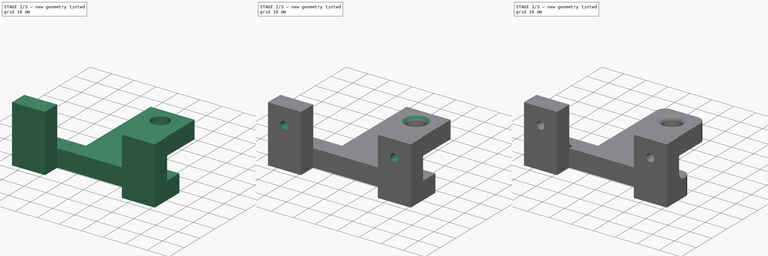
[diagram: build sequence overview — one tinted view per stage of 3, left to right]
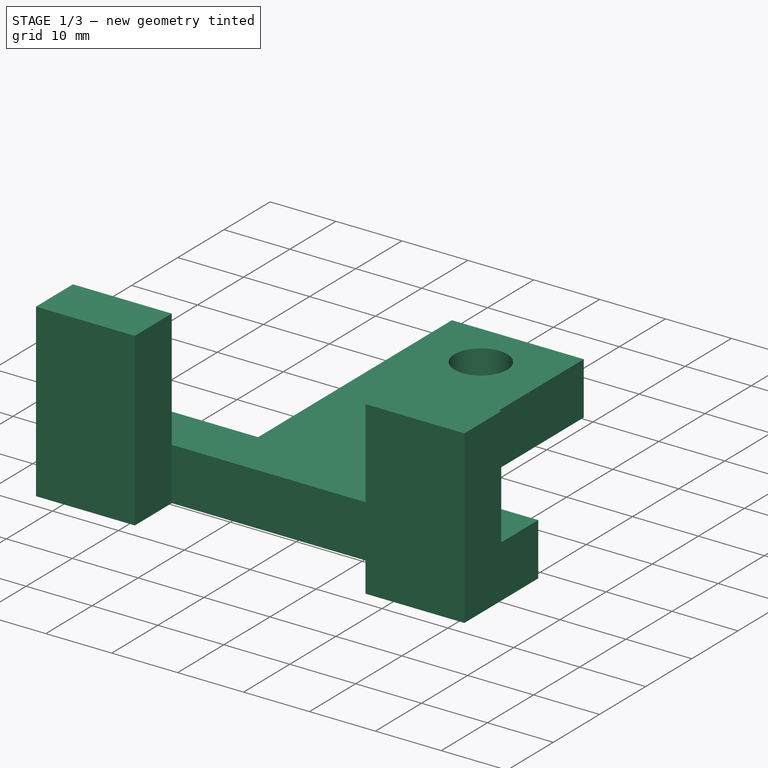
[diagram: stage 1 of 3 — iso view after this stage's code; geometry added in this stage tinted green]
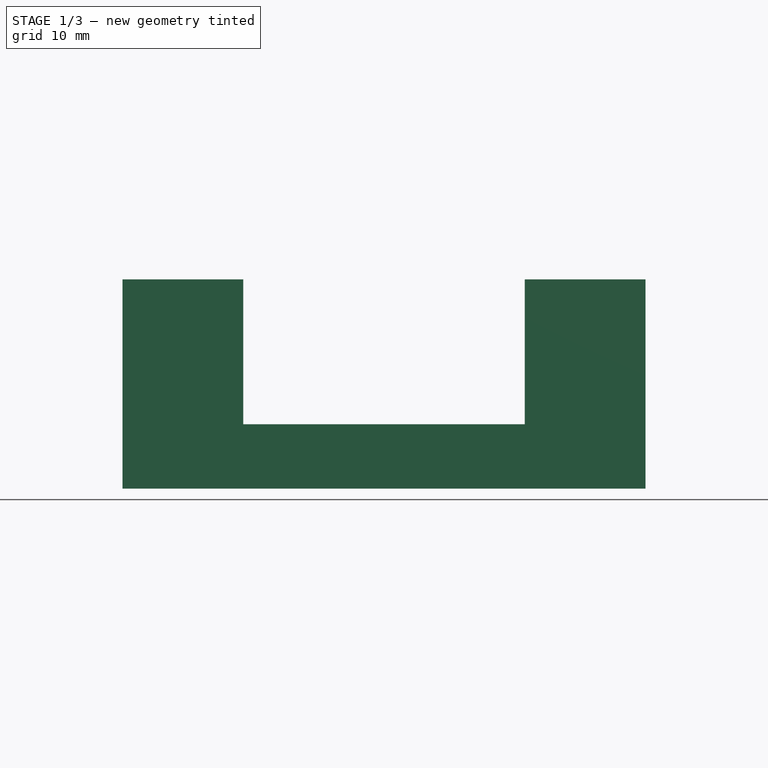
[diagram: stage 1 of 3 — front view after this stage's code; geometry added in this stage tinted green]
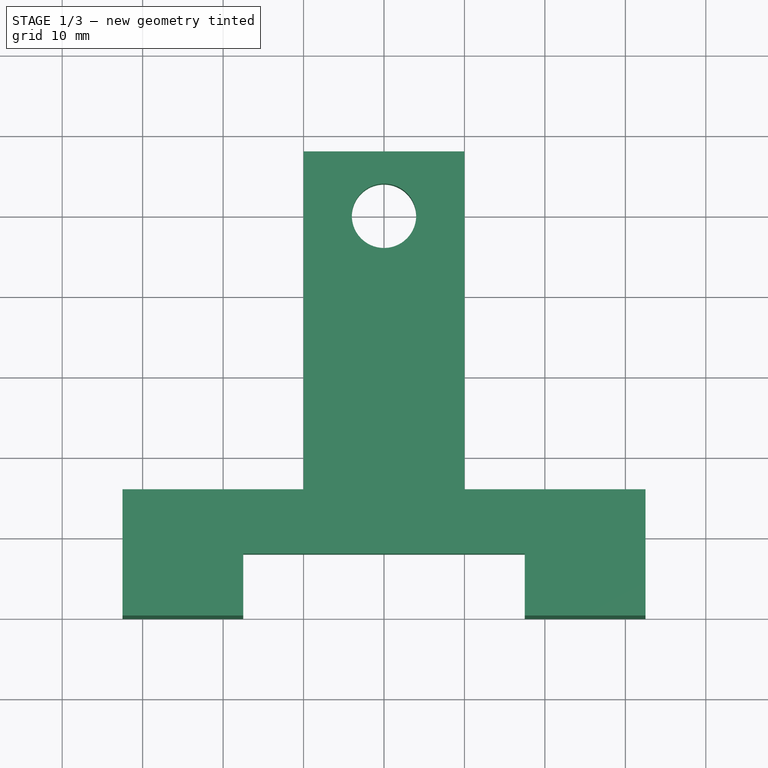
[diagram: stage 1 of 3 — top view after this stage's code; geometry added in this stage tinted green]
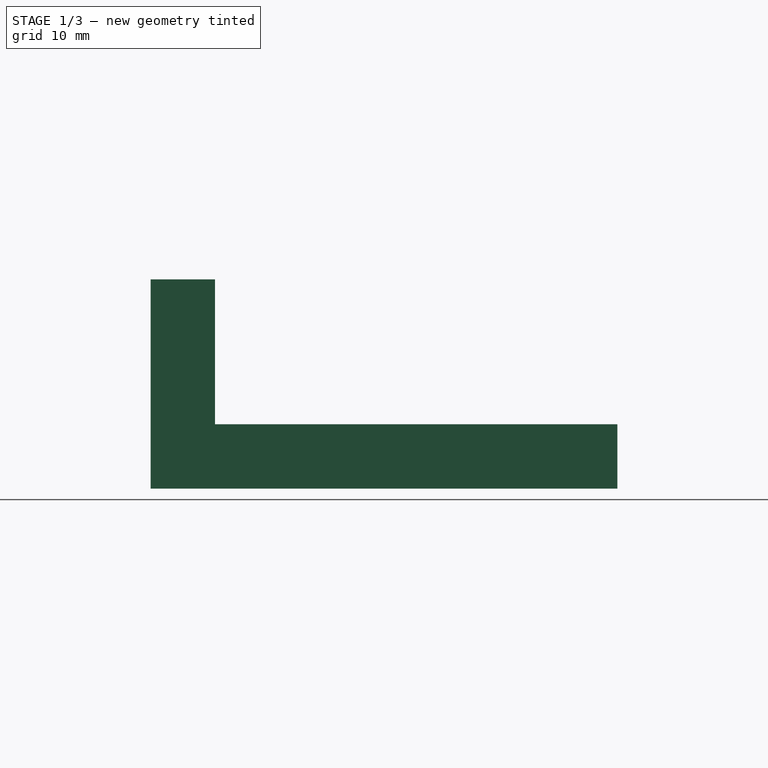
[diagram: stage 1 of 3 — right view after this stage's code; geometry added in this stage tinted green]
FCSTD DOCUMENT  (FreeCAD 1.0R39109 (Git))
Label: centre_tension_feed
License: All rights reserved
LicenseURL: http://en.wikipedia.org/wiki/All_rights_reserved
objects: PartDesign::Fillet×4, Sketcher::SketchObject×3, PartDesign::Pad×2, PartDesign::Pocket×1, PartDesign::Body×1
note: 28 computed .brp shape members not serialized (recipe doc carries the construction recipe); baked Part::Feature solids carry a one-line shape summary decoded from their .brp

FEATURE [Sketcher::SketchObject] Sketch
  ArcFitTolerance = 1e-06
  AttachmentSupport = -> [XY_Plane]
  FullyConstrained = true
  MakeInternals = false
  MapMode = 5
  sketch-geometry (13):
    g0: LineSegment StartX=-32.5 StartY=0 StartZ=0 EndX=-17.5 EndY=0 EndZ=0
    g1: LineSegment StartX=-17.5 StartY=0 StartZ=0 EndX=-17.5 EndY=8 EndZ=0
    g2: LineSegment StartX=-17.5 StartY=8 StartZ=0 EndX=17.5 EndY=8 EndZ=0
    g3: LineSegment StartX=17.5 StartY=8 StartZ=0 EndX=17.5 EndY=0 EndZ=0
    g4: LineSegment StartX=17.5 StartY=0 StartZ=0 EndX=32.5 EndY=0 EndZ=0
    g5: LineSegment StartX=32.5 StartY=0 StartZ=0 EndX=32.5 EndY=16 EndZ=0
    g6: LineSegment StartX=32.5 StartY=16 StartZ=0 EndX=10 EndY=16 EndZ=0
    g7: LineSegment StartX=10 StartY=16 StartZ=0 EndX=10 EndY=58 EndZ=0
    g8: LineSegment StartX=10 StartY=58 StartZ=0 EndX=-10 EndY=58 EndZ=0
    g9: LineSegment StartX=-10 StartY=58 StartZ=0 EndX=-10 EndY=16 EndZ=0
    g10: LineSegment StartX=-10 StartY=16 StartZ=0 EndX=-32.5 EndY=16 EndZ=0
    g11: LineSegment StartX=-32.5 StartY=16 StartZ=0 EndX=-32.5 EndY=0 EndZ=0
    g12: Circle CenterX=0 CenterY=50 CenterZ=0 NormalX=0 NormalY=0 NormalZ=1 AngleXU=0 Radius=4
  constraints (36):
    c: PointOnObject(g0,g-1)
    c: PointOnObject(g0,g-1)
    c: Coincident(g0,g1)
    c: Vertical(g1)
    c: Coincident(g1,g2)
    c: Coincident(g2,g3)
    c: PointOnObject(g3,g-1)
    c: Vertical(g3)
    c: Coincident(g3,g4)
    c: PointOnObject(g4,g-1)
    c: Coincident(g4,g5)
    c: Vertical(g5)
    c: Coincident(g5,g6)
    c: Horizontal(g6)
    c: Coincident(g6,g7)
    c: Vertical(g7)
    c: Coincident(g7,g8)
    c: Horizontal(g8)
    c: Coincident(g8,g9)
    c: Coincident(g9,g10)
    c: Coincident(g10,g11)
    c: Coincident(g11,g0)
    c: Vertical(g11)
    c: Vertical(g9)
    c: Symmetric(g2,g1,g-2)
    c: Symmetric(g6,g9,g-2)
    c: Symmetric(g5,g10,g-2)
    c: DistanceX(g0,g0) = 15
    c: DistanceX(g0,g4) = 65
    c: DistanceY(g-1,g7) = 58
    c: DistanceY(g2,g6) = 8
    c: DistanceX(g8,g8) = 20
    c: PointOnObject(g12,g-2)
    c: Diameter(g12) = 8
    c: DistanceY(g-1,g12) = 50
    c: DistanceY(g3,g3) = 8
FEATURE [PartDesign::Pad] Pad
  Direction = (0,0,1)
  Length = 8
  Length2 = 10
  Profile = -> Sketch
  ReferenceAxis = -> Sketch [N_Axis]
  Refine = true
  Suppressed = false
  Type = 0
FEATURE [Sketcher::SketchObject] Sketch001
  ArcFitTolerance = 1e-06
  AttachmentSupport = -> [Pad]
  ExternalGeometry = -> [Pad]
  FullyConstrained = true
  MakeInternals = false
  MapMode = 5
  Placement = pos=(0,0,8) rot=(0,0,1;0rad)
  sketch-geometry (8):
    g0: LineSegment StartX=-17.5 StartY=0 StartZ=0 EndX=-17.5 EndY=8 EndZ=0
    g1: LineSegment StartX=-17.5 StartY=8 StartZ=0 EndX=-32.5 EndY=8 EndZ=0
    g2: LineSegment StartX=-32.5 StartY=8 StartZ=0 EndX=-32.5 EndY=0 EndZ=0
    g3: LineSegment StartX=-32.5 StartY=0 StartZ=0 EndX=-17.5 EndY=0 EndZ=0
    g4: LineSegment StartX=32.5 StartY=0 StartZ=0 EndX=32.5 EndY=8 EndZ=0
    g5: LineSegment StartX=32.5 StartY=8 StartZ=0 EndX=17.5 EndY=8 EndZ=0
    g6: LineSegment StartX=17.5 StartY=8 StartZ=0 EndX=17.5 EndY=0 EndZ=0
    g7: LineSegment StartX=17.5 StartY=0 StartZ=0 EndX=32.5 EndY=0 EndZ=0
  constraints (20):
    c: Coincident(g0,g1)
    c: Coincident(g1,g2)
    c: Coincident(g2,g3)
    c: Coincident(g3,g0)
    c: Vertical(g0)
    c: Vertical(g2)
    c: Horizontal(g1)
    c: Horizontal(g3)
    c: Coincident(g0,g-3)
    c: Symmetric(g-4,g-4,g1)
    c: Coincident(g4,g5)
    c: Coincident(g5,g6)
    c: Coincident(g6,g7)
    c: Coincident(g7,g4)
    c: Vertical(g4)
    c: Vertical(g6)
    c: Horizontal(g5)
    c: Horizontal(g7)
    c: Coincident(g4,g-6)
    c: Coincident(g5,g-5)
FEATURE [PartDesign::Pad] Pad001
  BaseFeature = -> Pad
  Direction = (0,0,1)
  Length = 18
  Length2 = 10
  Profile = -> Sketch001
  ReferenceAxis = -> Sketch001 [N_Axis]
  Refine = true
  Suppressed = false
  Type = 0
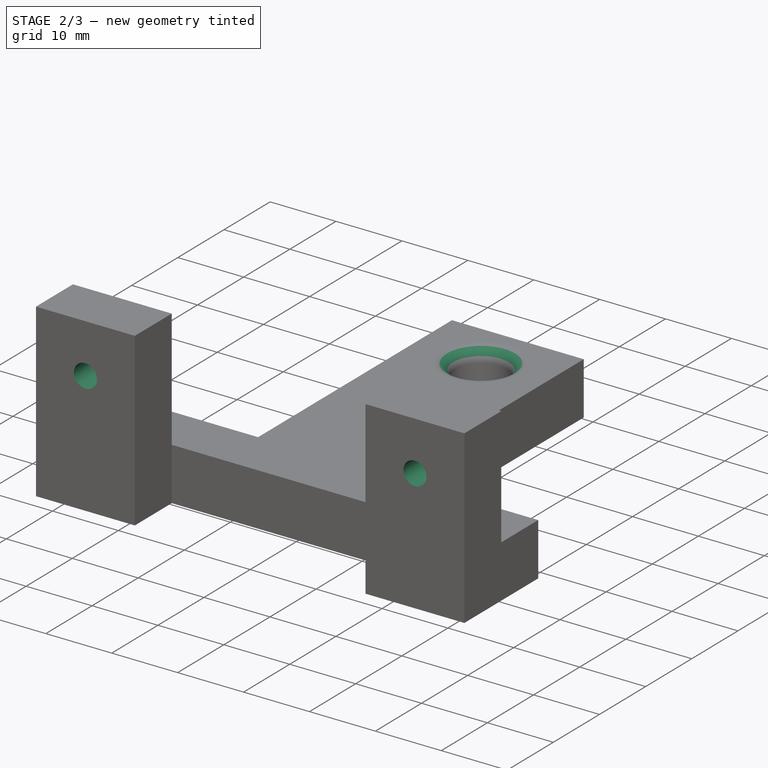
[diagram: stage 2 of 3 — iso view after this stage's code; geometry added in this stage tinted green]
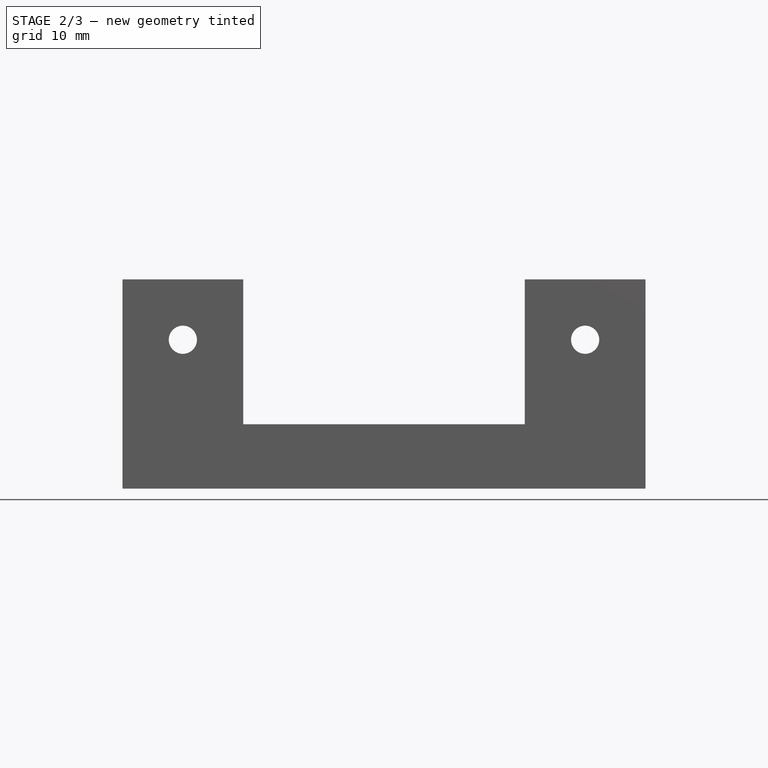
[diagram: stage 2 of 3 — front view after this stage's code; geometry added in this stage tinted green]
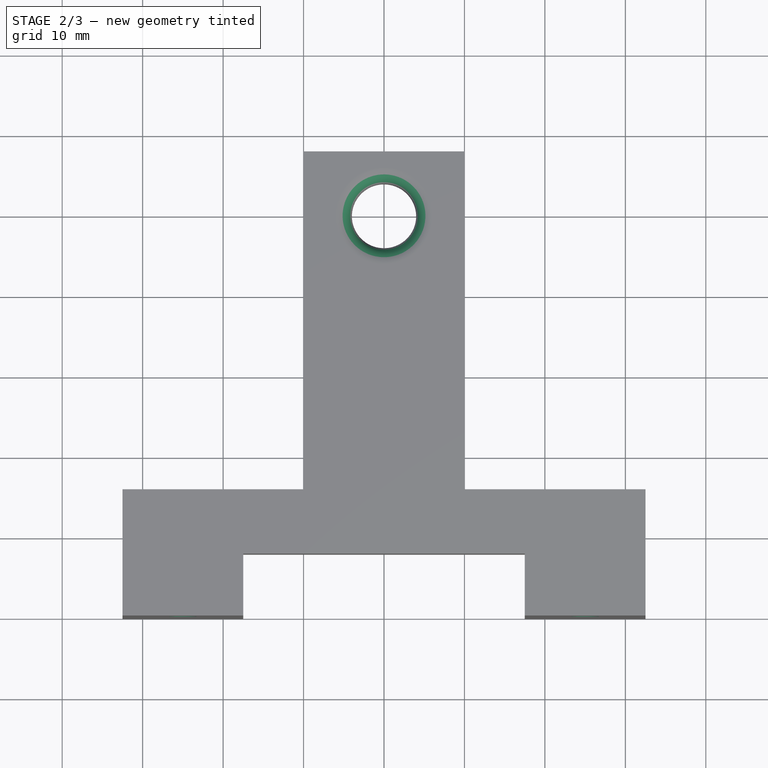
[diagram: stage 2 of 3 — top view after this stage's code; geometry added in this stage tinted green]
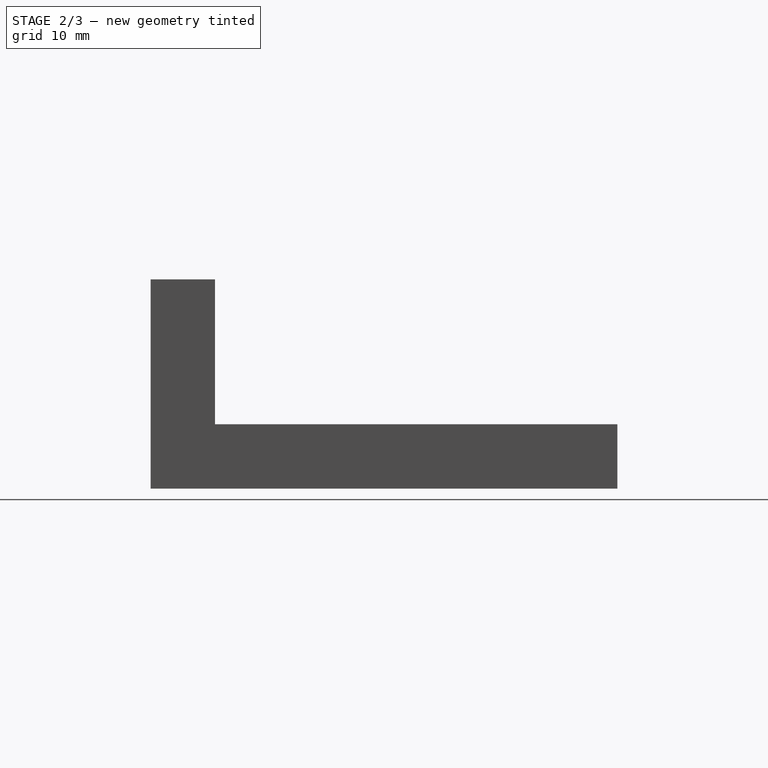
[diagram: stage 2 of 3 — right view after this stage's code; geometry added in this stage tinted green]
FEATURE [Sketcher::SketchObject] Sketch002
  ArcFitTolerance = 1e-06
  AttachmentSupport = -> [Pad001]
  ExternalGeometry = -> [Pad001]
  FullyConstrained = false
  MakeInternals = false
  MapMode = 5
  Placement = pos=(0,8,0) rot=(0,0.707107,0.707107;3.14159rad)
  sketch-geometry (2):
    g0: Circle CenterX=-25 CenterY=18.5 CenterZ=0 NormalX=0 NormalY=0 NormalZ=1 AngleXU=0 Radius=1.75
    g1: Circle CenterX=25 CenterY=18.5 CenterZ=0 NormalX=0 NormalY=0 NormalZ=1 AngleXU=0 Radius=1.75
  constraints (4):
    c: Diameter(g0) = 3.5
    c: DistanceX(g-3,g0) = 7.5
    c: DistanceY(g0,g-3) = 7.5
    c: Diameter(g1) = 3.5
FEATURE [PartDesign::Pocket] Pocket
  BaseFeature = -> Pad001
  Direction = (0,-1,2e-16)
  Length = 5
  Length2 = 5
  Profile = -> Sketch002
  ReferenceAxis = -> Sketch002 [N_Axis]
  Refine = true
  Suppressed = false
  Type = 1
FEATURE [PartDesign::Fillet] Fillet
  Base = -> Pocket [Edge47]
  BaseFeature = -> Pocket
  Radius = 2
  Refine = true
  SupportTransform = false
  Suppressed = false
  UseAllEdges = false
FEATURE [PartDesign::Fillet] Fillet001
  Base = -> Fillet [Edge3]
  BaseFeature = -> Fillet
  Radius = 2
  Refine = true
  SupportTransform = false
  Suppressed = false
  UseAllEdges = false
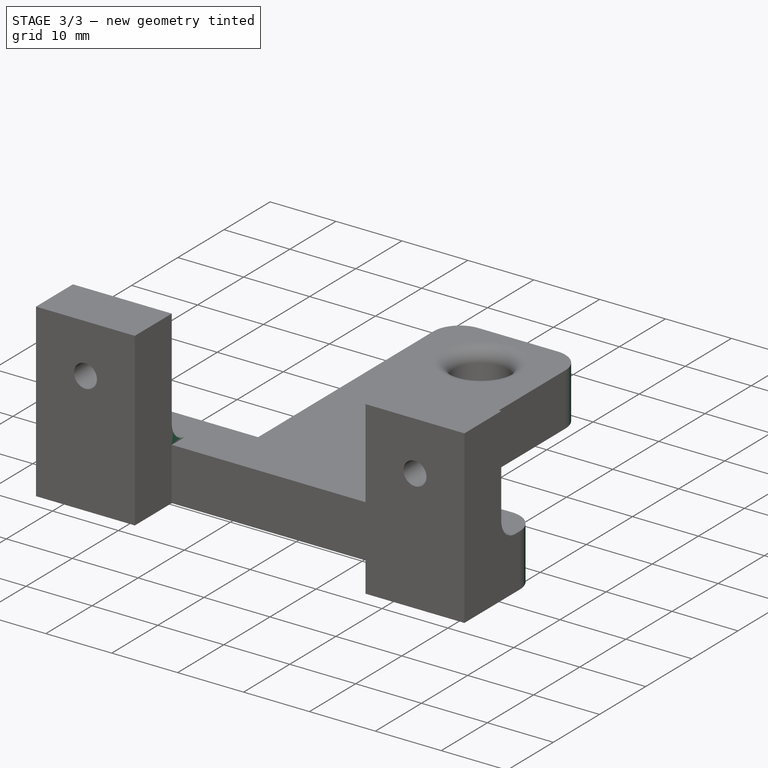
[diagram: stage 3 of 3 — iso view after this stage's code; geometry added in this stage tinted green]
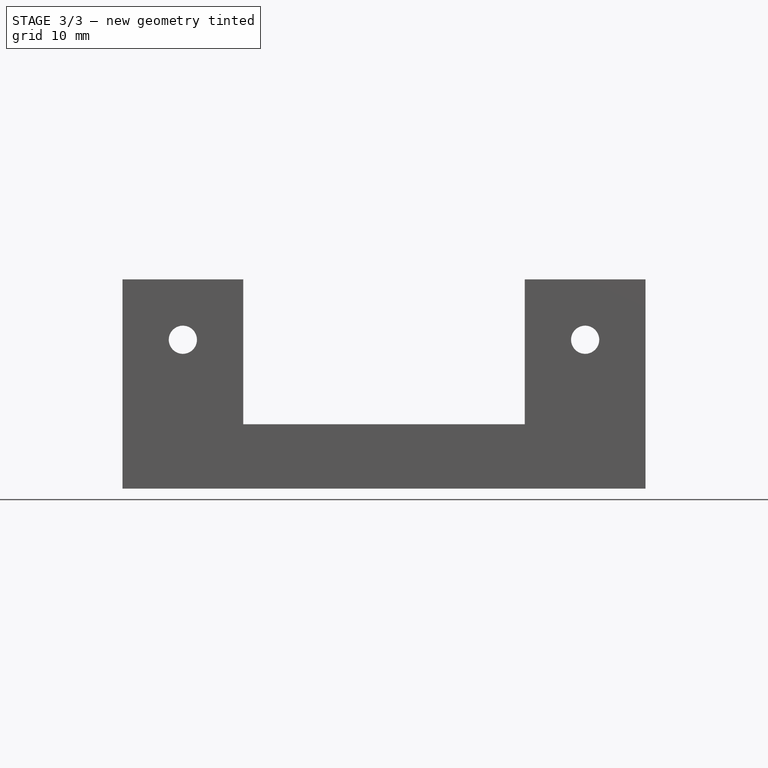
[diagram: stage 3 of 3 — front view after this stage's code; geometry added in this stage tinted green]
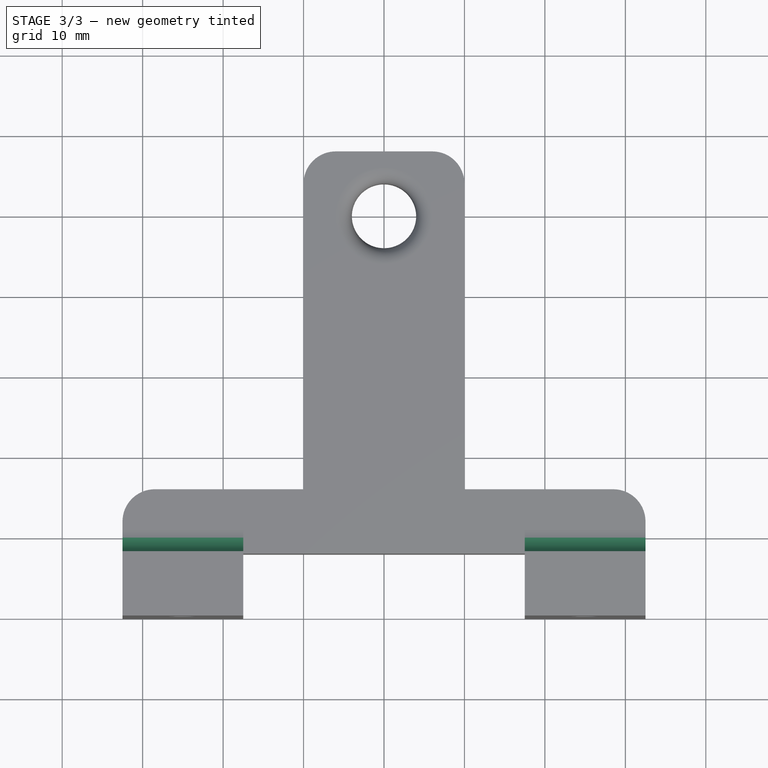
[diagram: stage 3 of 3 — top view after this stage's code; geometry added in this stage tinted green]
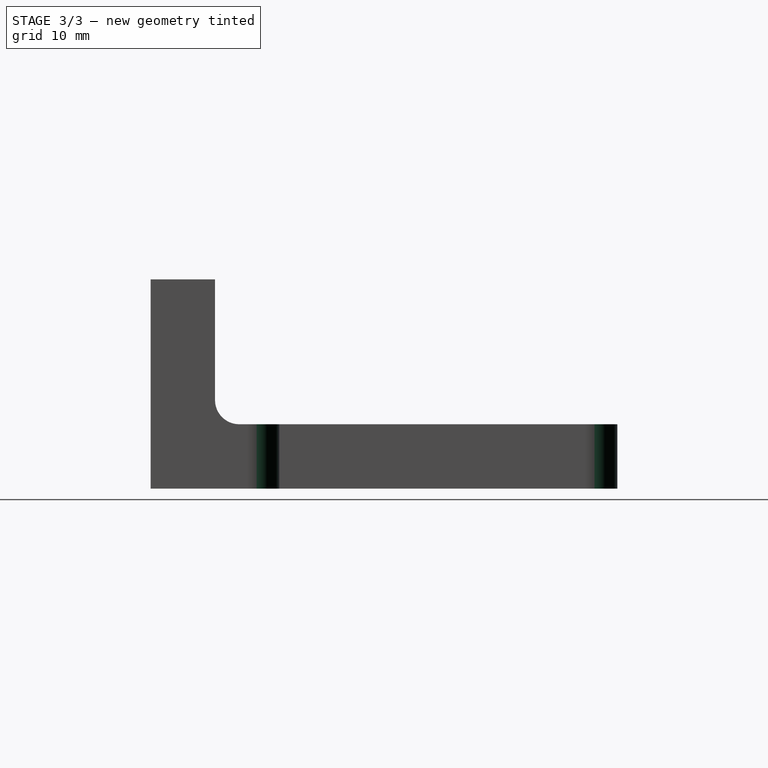
[diagram: stage 3 of 3 — right view after this stage's code; geometry added in this stage tinted green]
FEATURE [PartDesign::Fillet] Fillet002
  Base = -> Fillet001 [Edge49,Edge48,Edge51,Edge44]
  BaseFeature = -> Fillet001
  Radius = 4
  Refine = true
  SupportTransform = false
  Suppressed = false
  UseAllEdges = false
FEATURE [PartDesign::Fillet] Fillet003
  Base = -> Fillet002 [Edge61,Edge60]
  BaseFeature = -> Fillet002
  Radius = 3
  Refine = true
  SupportTransform = false
  Suppressed = false
  UseAllEdges = false
FEATURE [PartDesign::Body] Body
  AllowCompound = false
  Group = -> [Sketch,Pad,Sketch001,Pad001,Sketch002,Pocket,Fillet,Fillet001,Fillet002,Fillet003]
  Origin = -> Origin
  Tip = -> Fillet003
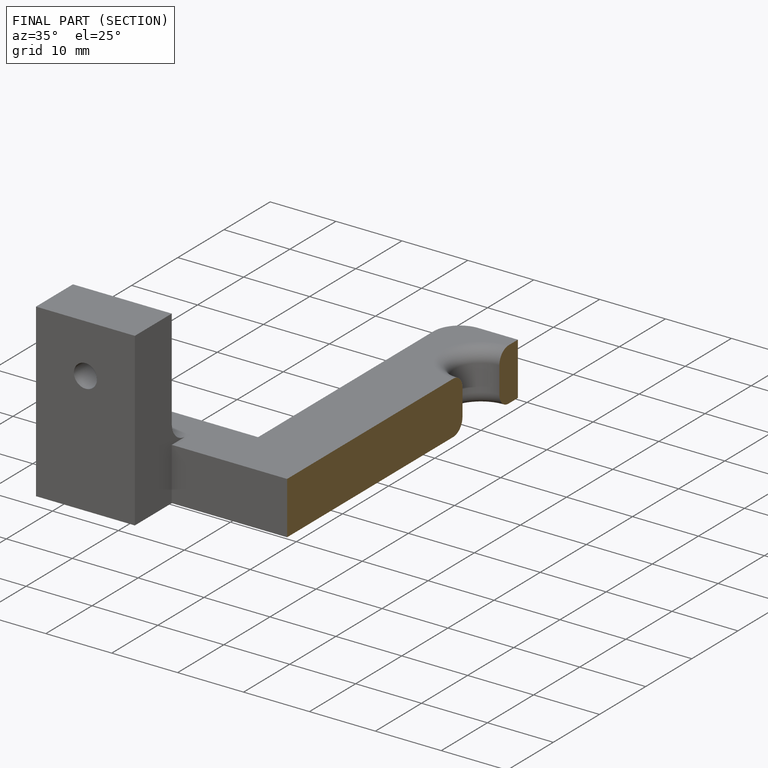
[diagram: finished part — half-section view (interior)]
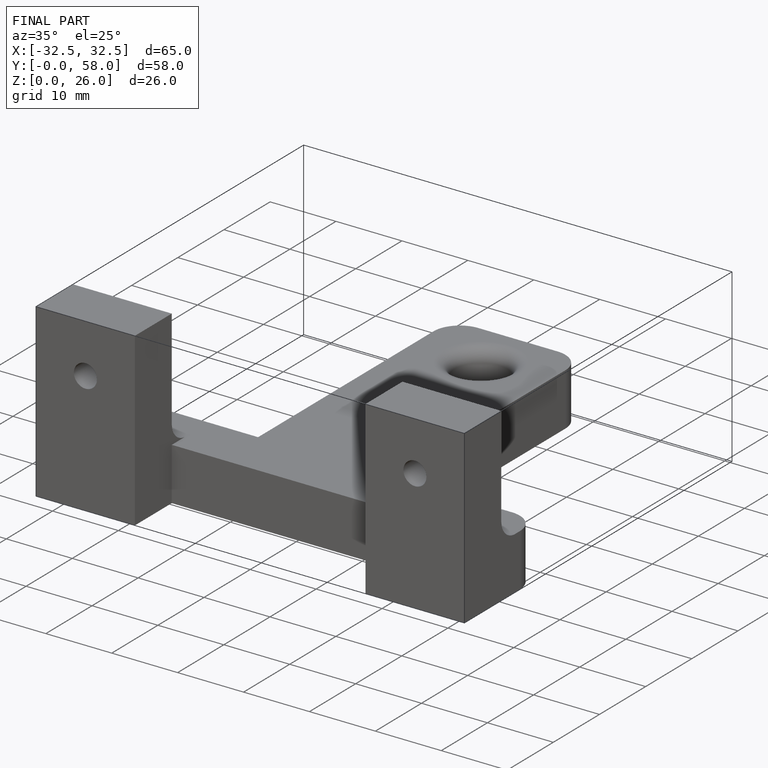
[diagram: finished part — iso view with bounding-box wireframe]
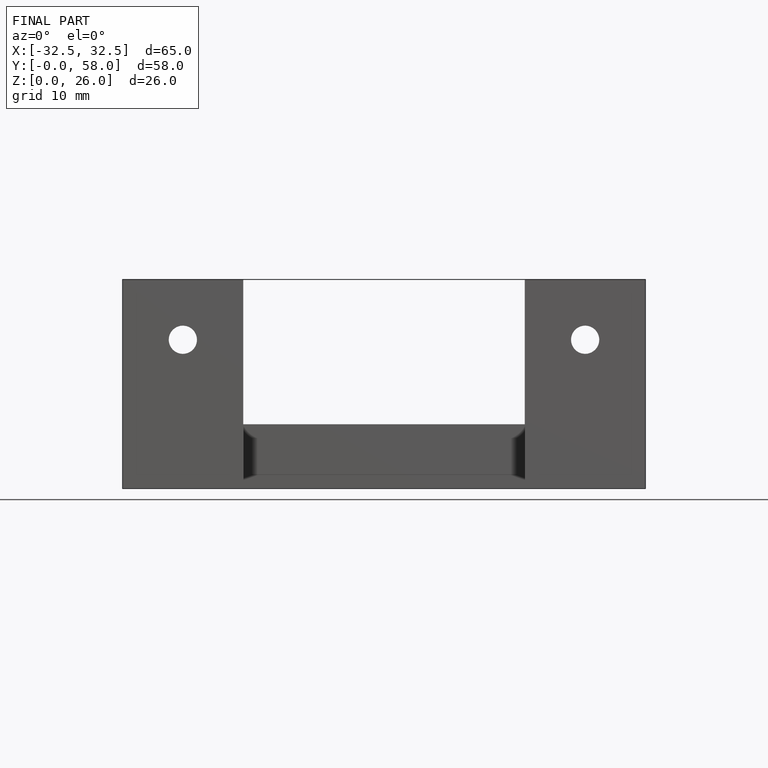
[diagram: finished part — front view with bounding-box wireframe]
